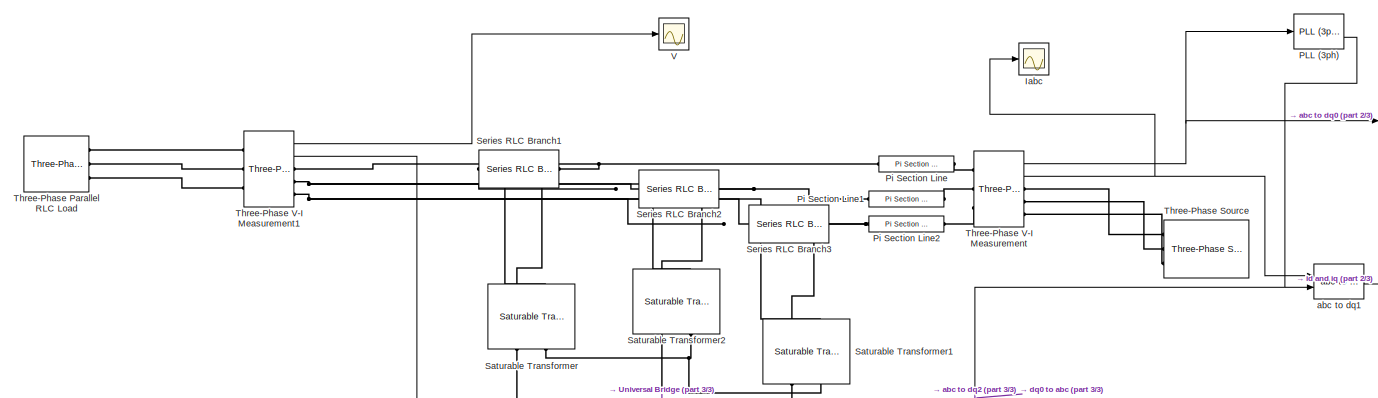
[diagram: root canvas - part 1/3, top left region]
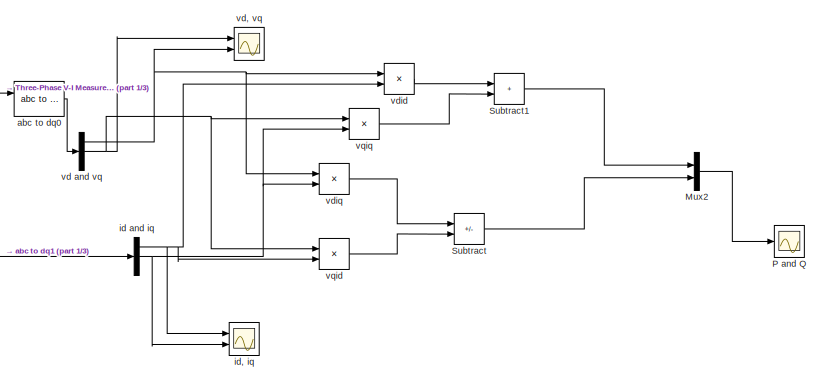
[diagram: root canvas - part 2/3, top right region]
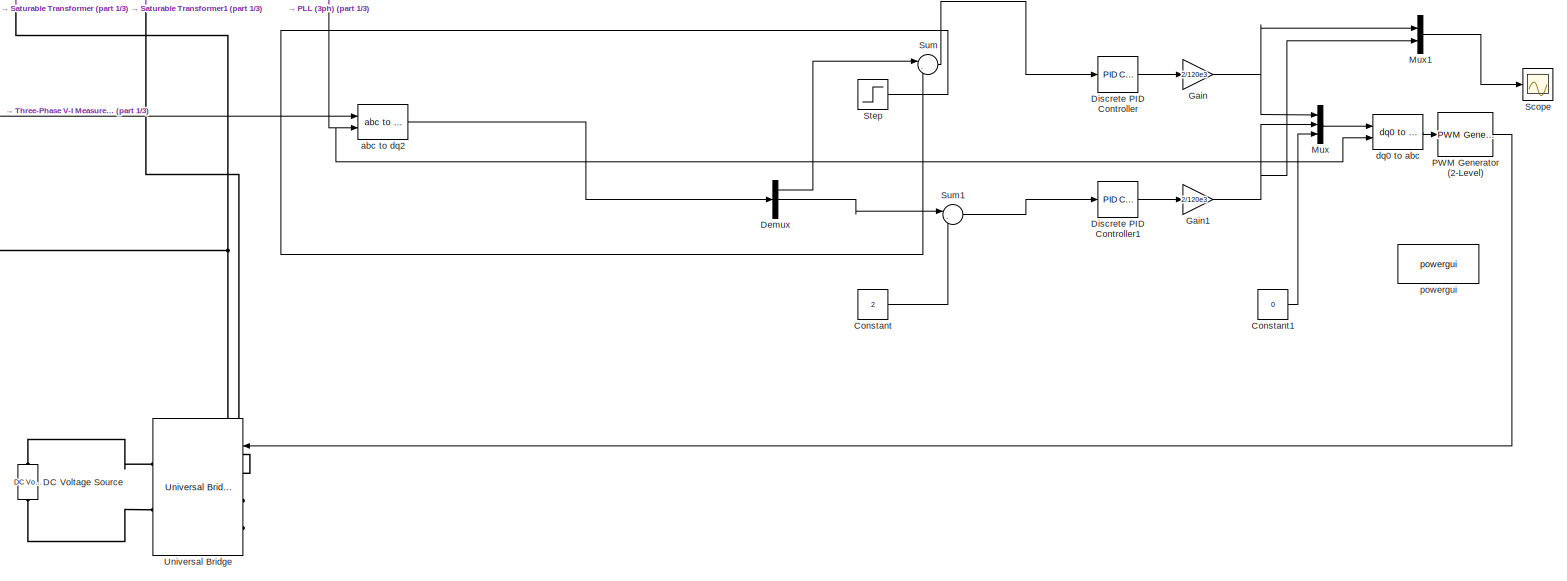
[diagram: root canvas - part 3/3, bottom center region]
MODEL slx_df77b09cc29b
KIND model
CONFIG AbsTol = auto
CONFIG EnableMultiTasking = off
CONFIG FixedStep = auto
CONFIG MaxStep = auto
CONFIG MinStep = auto
CONFIG RelTol = 1e-3
CONFIG SampleTimeConstraint = Unconstrained
CONFIG SolverName = VariableStepAuto
CONFIG StartTime = 0.0
CONFIG StopTime = 1
BLOCK [Constant] Constant
  SampleTime = 1e-6
  Value = 2
BLOCK [Constant] Constant1
  SampleTime = 1e-6
  Value = 0
BLOCK [Reference] DC Voltage Source  REF=spsDCVoltageSourceLib/DC Voltage Source
  Ports = [0, 0, 0, 0, 0, 1, 1]
  SourceBlock = spsDCVoltageSourceLib/DC Voltage Source
  SourceProductBaseCode = PS
  SourceType = DC Voltage Source
BLOCK [Demux] Demux
  Outputs = 3
  Ports = [1, 3]
BLOCK [Reference] Discrete PID Controller  REF=slpidlib/PID Controller
  Ports = [1, 1]
  SourceBlock = slpidlib/PID Controller
  SourceProductBaseCode = SL
  SourceType = PID 1dof
BLOCK [Reference] Discrete PID Controller1  REF=slpidlib/PID Controller
  Ports = [1, 1]
  SourceBlock = slpidlib/PID Controller
  SourceProductBaseCode = SL
  SourceType = PID 1dof
BLOCK [Gain] Gain
  Gain = 2/120e3
BLOCK [Gain] Gain1
  Gain = 2/120e3
BLOCK [Scope] Iabc
  Floating = off
  NumInputPorts = 1
  Ports = [1]
  ScopeSpecificationString = Simulink.scopes.TimeScopeBlockCfg('CurrentConfiguration', extmgr.ConfigurationSet(extmgr.Configuration('Core','General UI',true),extmgr.Configuration('Core','Source UI',true),extmgr.Configuration('Sources','WiredSimulink',true,'DataLoggingVariableName','ScopeData1'),extmgr.Configuration('Visuals','Time Domain',true,'SerializedDisplays',{struct('MinYLimReal','-1318.64686','MaxYLimReal','1151.78042'...<+1568ch>
BLOCK [Mux] Mux
  DisplayOption = bar
  Inputs = 3
  Ports = [3, 1]
BLOCK [Mux] Mux1
  DisplayOption = bar
  Inputs = 2
  Ports = [2, 1]
BLOCK [Mux] Mux2
  DisplayOption = bar
  Inputs = 2
  Ports = [2, 1]
BLOCK [Scope] P and Q
  Floating = off
  NumInputPorts = 1
  Ports = [1]
  ScopeSpecificationString = Simulink.scopes.TimeScopeBlockCfg('CurrentConfiguration', extmgr.ConfigurationSet(extmgr.Configuration('Core','General UI',true),extmgr.Configuration('Core','Source UI',true),extmgr.Configuration('Sources','WiredSimulink',true,'DataLoggingVariableName','ScopeData2'),extmgr.Configuration('Visuals','Time Domain',true,'SerializedDisplays',{struct('MinYLimReal','-19567161.11857','MaxYLimReal','2084292...<+1506ch>
BLOCK [Reference] PLL (3ph)  REF=spsPLL3phLib/PLL
(3ph)
  Ports = [1, 2]
  SourceBlock = spsPLL3phLib/PLL\n(3ph)
  SourceProductBaseCode = PS
  SourceType = PLL (3ph)
BLOCK [Reference] PWM Generator (2-Level)  REF=spsPWMGenerator2LevelLib/PWM Generator
(2-Level)
  Ports = [1, 1]
  SourceBlock = spsPWMGenerator2LevelLib/PWM Generator\n(2-Level)
  SourceProductBaseCode = PS
  SourceType = PWM Generator (2-Level)
BLOCK [Reference] Pi Section Line  REF=spsPiSectionLineLib/Pi Section Line
  AttributesFormatString = \n
  Ports = [0, 0, 0, 0, 0, 1, 1]
  SourceBlock = spsPiSectionLineLib/Pi Section Line
  SourceProductBaseCode = PS
  SourceType = Pi Section Line
BLOCK [Reference] Pi Section Line1  REF=spsPiSectionLineLib/Pi Section Line
  AttributesFormatString = \n
  Ports = [0, 0, 0, 0, 0, 1, 1]
  SourceBlock = spsPiSectionLineLib/Pi Section Line
  SourceProductBaseCode = PS
  SourceType = Pi Section Line
BLOCK [Reference] Pi Section Line2  REF=spsPiSectionLineLib/Pi Section Line
  AttributesFormatString = \n
  Ports = [0, 0, 0, 0, 0, 1, 1]
  SourceBlock = spsPiSectionLineLib/Pi Section Line
  SourceProductBaseCode = PS
  SourceType = Pi Section Line
BLOCK [Reference] Saturable Transformer  REF=spsSaturableTransformerLib/Saturable Transformer
  NameLocation = left
  Ports = [0, 0, 0, 0, 0, 2, 2]
  SourceBlock = spsSaturableTransformerLib/Saturable Transformer
  SourceProductBaseCode = PS
  SourceType = Saturable Transformer
BLOCK [Reference] Saturable Transformer1  REF=spsSaturableTransformerLib/Saturable Transformer
  NameLocation = left
  Ports = [0, 0, 0, 0, 0, 2, 2]
  SourceBlock = spsSaturableTransformerLib/Saturable Transformer
  SourceProductBaseCode = PS
  SourceType = Saturable Transformer
BLOCK [Reference] Saturable Transformer2  REF=spsSaturableTransformerLib/Saturable Transformer
  NameLocation = left
  Ports = [0, 0, 0, 0, 0, 2, 2]
  SourceBlock = spsSaturableTransformerLib/Saturable Transformer
  SourceProductBaseCode = PS
  SourceType = Saturable Transformer
BLOCK [Scope] Scope
  Floating = off
  NumInputPorts = 1
  Ports = [1]
  ScopeSpecificationString = Simulink.scopes.TimeScopeBlockCfg('CurrentConfiguration', extmgr.ConfigurationSet(extmgr.Configuration('Core','General UI',true),extmgr.Configuration('Core','Source UI',true),extmgr.Configuration('Sources','WiredSimulink',true,'DataLoggingVariableName','ScopeData3'),extmgr.Configuration('Visuals','Time Domain',true,'SerializedDisplays',{struct('MinYLimReal','-105.8501','MaxYLimReal','89.21804','YL...<+1454ch>
BLOCK [Reference] Series RLC Branch1  REF=spsSeriesRLCBranchLib/Series RLC Branch
  Ports = [0, 0, 0, 0, 0, 1, 1]
  SourceBlock = spsSeriesRLCBranchLib/Series RLC Branch
  SourceProductBaseCode = PS
  SourceType = Series RLC Branch
BLOCK [Reference] Series RLC Branch2  REF=spsSeriesRLCBranchLib/Series RLC Branch
  Ports = [0, 0, 0, 0, 0, 1, 1]
  SourceBlock = spsSeriesRLCBranchLib/Series RLC Branch
  SourceProductBaseCode = PS
  SourceType = Series RLC Branch
BLOCK [Reference] Series RLC Branch3  REF=spsSeriesRLCBranchLib/Series RLC Branch
  Ports = [0, 0, 0, 0, 0, 1, 1]
  SourceBlock = spsSeriesRLCBranchLib/Series RLC Branch
  SourceProductBaseCode = PS
  SourceType = Series RLC Branch
BLOCK [Step] Step
  After = 5
  Before = 10
  SampleTime = 1e-6
  Time = 0.25
BLOCK [Sum] Subtract
  IconShape = rectangular
  Inputs = +-
  Ports = [2, 1]
BLOCK [Sum] Subtract1
  IconShape = rectangular
  Ports = [2, 1]
BLOCK [Sum] Sum
  Inputs = |-+
  Ports = [2, 1]
BLOCK [Sum] Sum1
  Inputs = |-+
  Ports = [2, 1]
BLOCK [Reference] Three-Phase Parallel RLC Load  REF=spsThreePhaseParallelRLCLoadLib/Three-Phase
Parallel RLC Load
  AttributesFormatString = \n
  NameLocation = left
  Ports = [0, 0, 0, 0, 0, 3]
  SourceBlock = spsThreePhaseParallelRLCLoadLib/Three-Phase\nParallel RLC Load
  SourceProductBaseCode = PS
  SourceType = Three-Phase Parallel RLC Load
BLOCK [Reference] Three-Phase Source  REF=spsThreePhaseSourceLib/Three-Phase Source
  Ports = [0, 0, 0, 0, 0, 0, 3]
  SourceBlock = spsThreePhaseSourceLib/Three-Phase Source
  SourceProductBaseCode = PS
  SourceType = Three-Phase Source
BLOCK [Reference] Three-Phase V-I Measurement  REF=spsThreePhaseVIMeasurementLib/Three-Phase
V-I Measurement
  Ports = [0, 2, 0, 0, 0, 3, 3]
  SourceBlock = spsThreePhaseVIMeasurementLib/Three-Phase\nV-I Measurement
  SourceProductBaseCode = PS
  SourceType = Three-Phase VI Measurement
BLOCK [Reference] Three-Phase V-I Measurement1  REF=spsThreePhaseVIMeasurementLib/Three-Phase
V-I Measurement
  Ports = [0, 2, 0, 0, 0, 3, 3]
  SourceBlock = spsThreePhaseVIMeasurementLib/Three-Phase\nV-I Measurement
  SourceProductBaseCode = PS
  SourceType = Three-Phase VI Measurement
BLOCK [Reference] Universal Bridge  REF=spsUniversalBridgeLib/Universal Bridge
  Ports = [1, 0, 0, 0, 0, 3, 2]
  SourceBlock = spsUniversalBridgeLib/Universal Bridge
  SourceProductBaseCode = PS
  SourceType = Universal Bridge
BLOCK [Scope] V
  Floating = off
  NumInputPorts = 1
  Ports = [1]
  ScopeSpecificationString = Simulink.scopes.TimeScopeBlockCfg('CurrentConfiguration', extmgr.ConfigurationSet(extmgr.Configuration('Core','General UI',true),extmgr.Configuration('Core','Source UI',true),extmgr.Configuration('Sources','WiredSimulink',true,'DataLoggingVariableName','ScopeData4'),extmgr.Configuration('Visuals','Time Domain',true,'SerializedDisplays',{struct('MinYLimReal','-1318.64686','MaxYLimReal','1151.78042'...<+1571ch>
BLOCK [Reference] abc to dq0  REF=spsabctodq0Lib/abc to dq0
  Ports = [2, 1]
  SourceBlock = spsabctodq0Lib/abc to dq0
  SourceProductBaseCode = PS
  SourceType = abc to dq0 Transformation
BLOCK [Reference] abc to dq1  REF=spsabctodq0Lib/abc to dq0
  Ports = [2, 1]
  SourceBlock = spsabctodq0Lib/abc to dq0
  SourceProductBaseCode = PS
  SourceType = abc to dq0 Transformation
BLOCK [Reference] abc to dq2  REF=spsabctodq0Lib/abc to dq0
  Ports = [2, 1]
  SourceBlock = spsabctodq0Lib/abc to dq0
  SourceProductBaseCode = PS
  SourceType = abc to dq0 Transformation
BLOCK [Reference] dq0 to abc  REF=spsdq0toabcLib/dq0 to abc
  Ports = [2, 1]
  SourceBlock = spsdq0toabcLib/dq0 to abc
  SourceProductBaseCode = PS
  SourceType = dq0 to abc Transformation
BLOCK [Demux] id and iq
  Outputs = 3
  Ports = [1, 3]
BLOCK [Scope] id, iq
  Floating = off
  NumInputPorts = 2
  Ports = [2]
  ScopeSpecificationString = Simulink.scopes.TimeScopeBlockCfg('CurrentConfiguration', extmgr.ConfigurationSet(extmgr.Configuration('Core','General UI',true),extmgr.Configuration('Core','Source UI',true),extmgr.Configuration('Sources','WiredSimulink',true,'DataLoggingVariableName','ScopeData5'),extmgr.Configuration('Visuals','Time Domain',true,'SerializedDisplays',{struct('MinYLimReal','-863.13192','MaxYLimReal','1234.47087',...<+1429ch>
BLOCK [Reference] powergui  REF=spspowerguiLib/powergui
  Ports = []
  Priority = 1
  SourceBlock = spspowerguiLib/powergui
  SourceProductBaseCode = PS
  SourceType = PSB option menu block
BLOCK [Demux] vd and vq
  Outputs = 3
  Ports = [1, 3]
BLOCK [Scope] vd, vq
  Floating = off
  NumInputPorts = 2
  Ports = [2]
  ScopeSpecificationString = Simulink.scopes.TimeScopeBlockCfg('CurrentConfiguration', extmgr.ConfigurationSet(extmgr.Configuration('Core','General UI',true),extmgr.Configuration('Core','Source UI',true),extmgr.Configuration('Sources','WiredSimulink',true),extmgr.Configuration('Visuals','Time Domain',true,'SerializedDisplays',{struct('MinYLimReal','-20503.66552','MaxYLimReal','24777.50173','YLabelReal','','MinYLimMag','   0.0...<+1448ch>
BLOCK [Product] vdid
  Ports = [2, 1]
BLOCK [Product] vdiq
  Ports = [2, 1]
BLOCK [Product] vqid
  Ports = [2, 1]
BLOCK [Product] vqiq
  Ports = [2, 1]
LINE Constant1:1 -> Mux:3
LINE Constant:1 -> Sum1:2
LINE Demux:1 -> Sum:1
LINE Demux:2 -> Sum1:1
LINE Discrete PID Controller1:1 -> Gain1:1
LINE Discrete PID Controller:1 -> Gain:1
NET Gain1:1 -> Mux1:2, Mux:2
NET Gain:1 -> Mux1:1, Mux:1
LINE Mux1:1 -> Scope:1
LINE Mux2:1 -> P and Q:1
LINE Mux:1 -> dq0 to abc:1
NET PLL (3ph):2 -> abc to dq1:2, abc to dq2:2, dq0 to abc:2
LINE PWM Generator (2-Level):1 -> Universal Bridge:1
LINE Step:1 -> Sum:2
LINE Subtract1:1 -> Mux2:1
LINE Subtract:1 -> Mux2:2
LINE Sum1:1 -> Discrete PID Controller1:1
LINE Sum:1 -> Discrete PID Controller:1
LINE Three-Phase V-I Measurement1:1 -> V:1
LINE Three-Phase V-I Measurement1:2 -> abc to dq2:1
NET Three-Phase V-I Measurement:1 -> PLL (3ph):1, abc to dq0:1
NET Three-Phase V-I Measurement:2 -> Iabc:1, abc to dq1:1
LINE abc to dq0:1 -> vd and vq:1
LINE abc to dq1:1 -> id and iq:1
LINE abc to dq2:1 -> Demux:1
LINE dq0 to abc:1 -> PWM Generator (2-Level):1
NET id and iq:1 -> id, iq:1, vdid:2, vqid:2
NET id and iq:2 -> id, iq:2, vdiq:2, vqiq:2
NET vd and vq:1 -> vd, vq:2, vdid:1, vdiq:1
NET vd and vq:2 -> vd, vq:1, vqid:1, vqiq:1
LINE vdid:1 -> Subtract1:1
LINE vdiq:1 -> Subtract:1
LINE vqid:1 -> Subtract:2
LINE vqiq:1 -> Subtract1:2
PLINE DC Voltage Source:LConn1 -- Universal Bridge:RConn2
PLINE DC Voltage Source:RConn1 -- Universal Bridge:RConn1
PNET net1: Pi Section Line1:LConn1 -- Saturable Transformer2:LConn1 -- Series RLC Branch2:RConn1
PLINE Pi Section Line1:RConn1 -- Three-Phase V-I Measurement:LConn2
PNET net2: Pi Section Line2:LConn1 -- Saturable Transformer1:LConn1 -- Series RLC Branch3:RConn1
PLINE Pi Section Line2:RConn1 -- Three-Phase V-I Measurement:LConn3
PNET net3: Pi Section Line:LConn1 -- Saturable Transformer:LConn1 -- Series RLC Branch1:RConn1
PLINE Pi Section Line:RConn1 -- Three-Phase V-I Measurement:LConn1
PNET net4: Saturable Transformer1:LConn2 -- Series RLC Branch3:LConn1 -- Three-Phase V-I Measurement1:RConn3
PLINE Saturable Transformer1:RConn1 -- Universal Bridge:LConn3
PNET net5: Saturable Transformer1:RConn2 -- Saturable Transformer2:RConn2 -- Saturable Transformer:RConn2
PNET net6: Saturable Transformer2:LConn2 -- Series RLC Branch2:LConn1 -- Three-Phase V-I Measurement1:RConn2
PNET net7: Saturable Transformer2:RConn1 -- Saturable Transformer:RConn1 -- Universal Bridge:LConn1 -- Universal Bridge:LConn2
PNET net8: Saturable Transformer:LConn2 -- Series RLC Branch1:LConn1 -- Three-Phase V-I Measurement1:RConn1
PLINE Three-Phase Parallel RLC Load:LConn1 -- Three-Phase V-I Measurement1:LConn1
PLINE Three-Phase Parallel RLC Load:LConn2 -- Three-Phase V-I Measurement1:LConn2
PLINE Three-Phase Parallel RLC Load:LConn3 -- Three-Phase V-I Measurement1:LConn3
PLINE Three-Phase Source:RConn1 -- Three-Phase V-I Measurement:RConn1
PLINE Three-Phase Source:RConn2 -- Three-Phase V-I Measurement:RConn2
PLINE Three-Phase Source:RConn3 -- Three-Phase V-I Measurement:RConn3
note: NET lines group one-source signal fan-out (src -> all destinations, sorted); 1:1 wires keep LINE; PNET lines group multi-terminal physical nets as a canonical sorted terminal list (undirected conserving connections); 2-terminal nets keep the pairwise PLINE form
